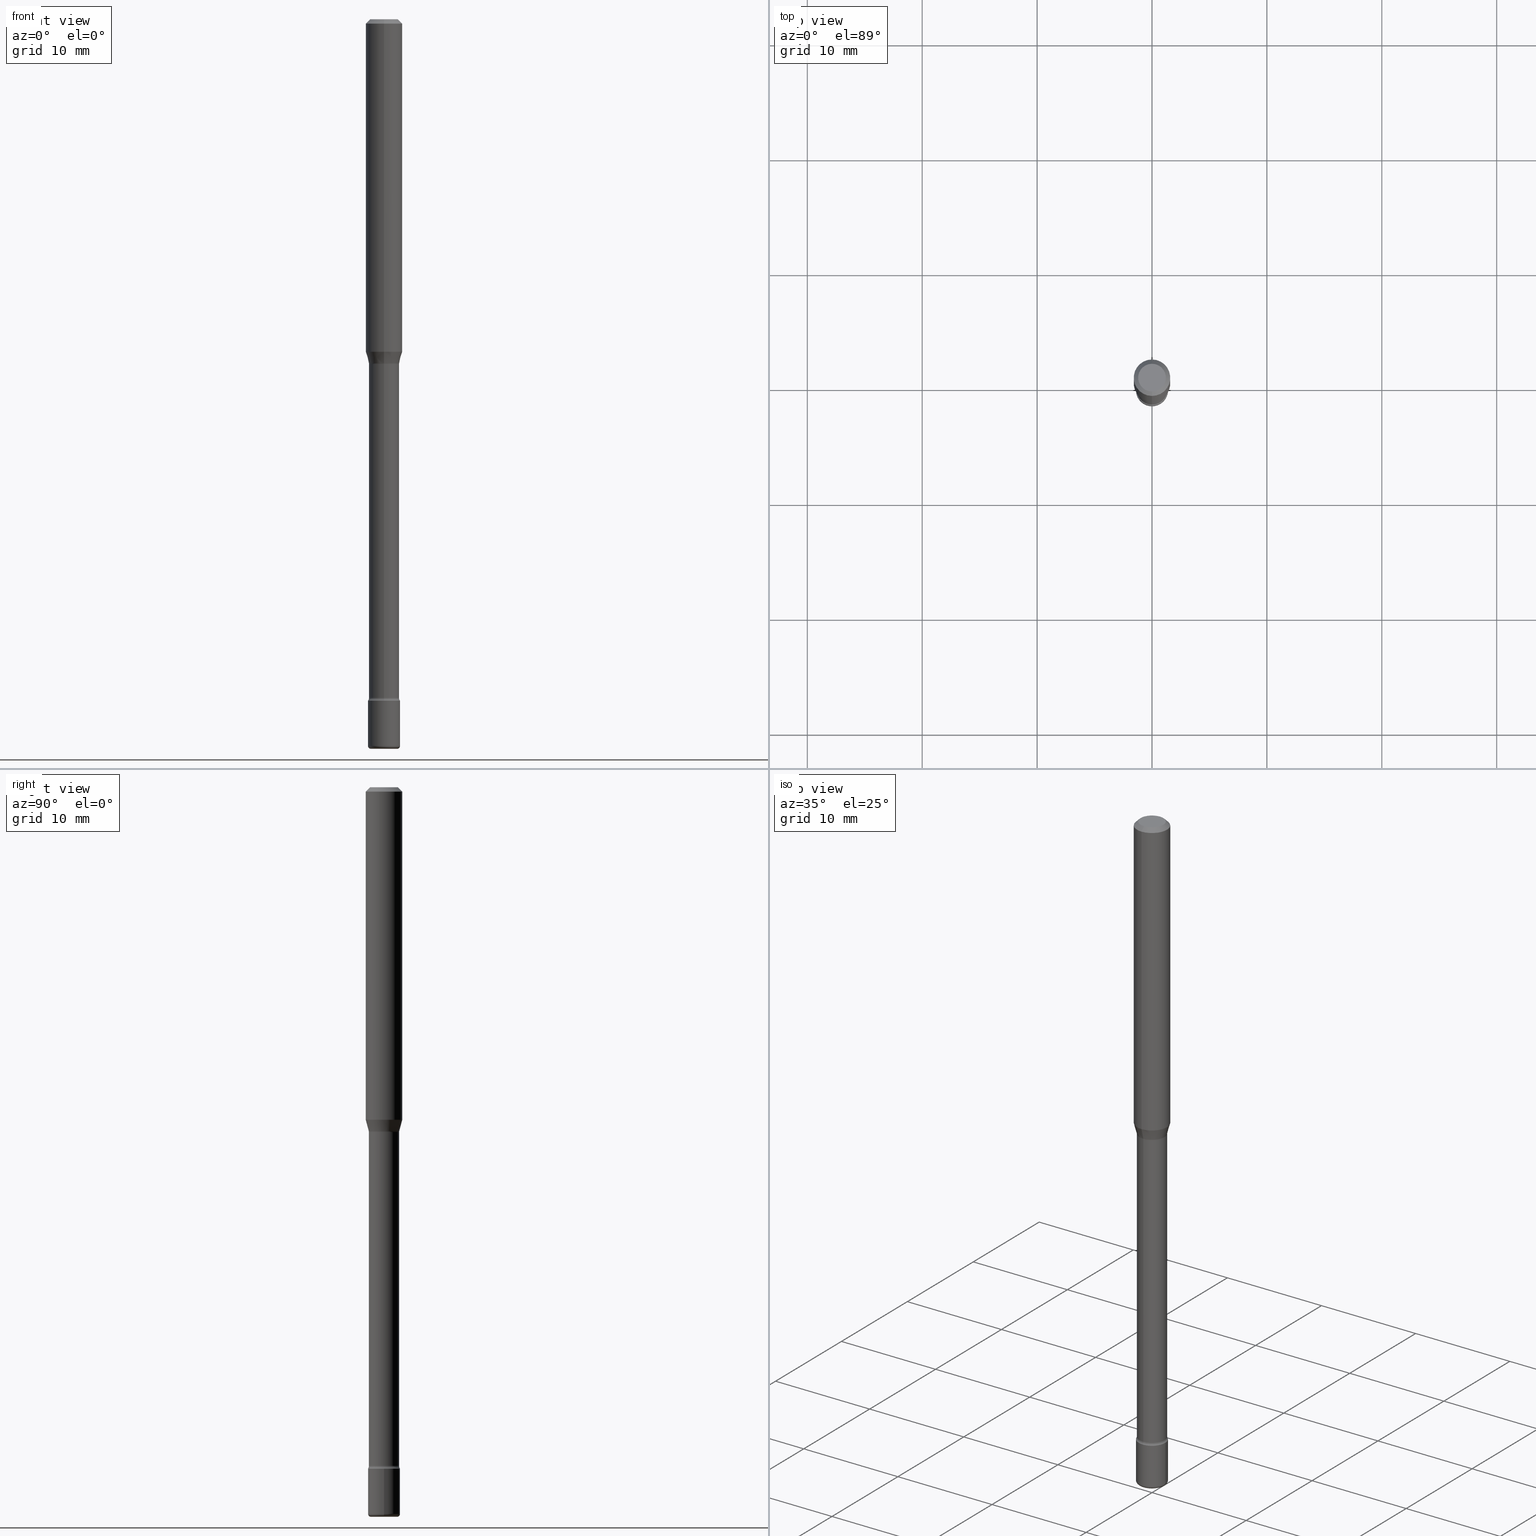
[diagram: canonical four-view strip — front | top / right | iso, engineering-drawing reading convention]
A machine part, canonical four-view strip (front | top / right | iso — engineering-drawing reading convention). The complete STEP part file that produces these views, byte-faithful:
ISO-10303-21;
HEADER;
FILE_DESCRIPTION (( 'STEP AP203' ),
    '1' );
FILE_NAME ('08871.STEP',
    '2024-03-06T20:07:18',
    ( '' ),
    ( '' ),
    'SwSTEP 2.0',
    'SolidWorks 2023',
    '' );
FILE_SCHEMA (( 'CONFIG_CONTROL_DESIGN' ));
ENDSEC;

DATA;
#1 = VECTOR ( 'NONE', #406, 39.37007874015748143 ) ;
#2 = CYLINDRICAL_SURFACE ( 'NONE', #72, 0.05169999999999998902 ) ;
#3 = LOCAL_TIME ( 15, 7, 18.00000000000000000, #459 ) ;
#4 = ORIENTED_EDGE ( 'NONE', *, *, #398, .F. ) ;
#5 = DIRECTION ( 'NONE',  ( 1.000000000000000000, -6.982962677686246989E-15, 0.000000000000000000 ) ) ;
#6 = CC_DESIGN_DATE_AND_TIME_ASSIGNMENT ( #100, #246, ( #517 ) ) ;
#7 = CARTESIAN_POINT ( 'NONE',  ( 0.000000000000000000, 0.000000000000000000, 0.000000000000000000 ) ) ;
#8 = ORIENTED_EDGE ( 'NONE', *, *, #170, .F. ) ;
#9 = DIRECTION ( 'NONE',  ( -2.445442429917292137E-29, 3.491519111159942797E-15, 1.000000000000000000 ) ) ;
#10 = ORIENTED_EDGE ( 'NONE', *, *, #354, .T. ) ;
#11 = ORIENTED_EDGE ( 'NONE', *, *, #210, .F. ) ;
#12 = TOROIDAL_SURFACE ( 'NONE', #240, 0.04499999999999999833, 0.01000000000000009041 ) ;
#13 = APPROVAL_PERSON_ORGANIZATION ( #21, #471, #426 ) ;
#14 = VERTEX_POINT ( 'NONE', #401 ) ;
#15 = ORIENTED_EDGE ( 'NONE', *, *, #400, .T. ) ;
#16 = DIRECTION ( 'NONE',  ( 1.000000000000000000, -6.982962677686260400E-15, 0.000000000000000000 ) ) ;
#17 = PERSON_AND_ORGANIZATION_ROLE ( 'design_owner' ) ;
#18 = VERTEX_POINT ( 'NONE', #88 ) ;
#19 = VERTEX_POINT ( 'NONE', #135 ) ;
#20 = ADVANCED_FACE ( 'NONE', ( #476 ), #269, .F. ) ;
#21 = PERSON_AND_ORGANIZATION ( #250, #469 ) ;
#22 = EDGE_LOOP ( 'NONE', ( #155, #542, #4, #547 ) ) ;
#23 = EDGE_CURVE ( 'NONE', #19, #295, #146, .T. ) ;
#24 = PERSON_AND_ORGANIZATION_ROLE ( 'creator' ) ;
#25 = AXIS2_PLACEMENT_3D ( 'NONE', #530, #133, #480 ) ;
#26 = LOCAL_TIME ( 15, 7, 18.00000000000000000, #200 ) ;
#27 = EDGE_LOOP ( 'NONE', ( #362, #11, #382, #103 ) ) ;
#28 = PERSON_AND_ORGANIZATION ( #250, #469 ) ;
#29 = DIRECTION ( 'NONE',  ( 6.982962677686265922E-15, 1.000000000000000000, -3.483106191921935554E-15 ) ) ;
#30 = EDGE_CURVE ( 'NONE', #18, #14, #402, .T. ) ;
#31 = DIRECTION ( 'NONE',  ( -2.445442429917292137E-29, 3.491519111159942797E-15, 1.000000000000000000 ) ) ;
#32 = AXIS2_PLACEMENT_3D ( 'NONE', #99, #483, #548 ) ;
#33 = AXIS2_PLACEMENT_3D ( 'NONE', #514, #392, #527 ) ;
#34 = CARTESIAN_POINT ( 'NONE',  ( 5.710108073856877243E-29, -8.152697124558466516E-15, -2.334999999999999964 ) ) ;
#35 = CARTESIAN_POINT ( 'NONE',  ( -1.169113584055446105E-44, 1.669184350826100908E-30, 4.780733988912460139E-16 ) ) ;
#36 = EDGE_CURVE ( 'NONE', #495, #198, #92, .T. ) ;
#37 = APPROVAL_DATE_TIME ( #76, #247 ) ;
#38 = ADVANCED_FACE ( 'NONE', ( #129 ), #2, .T. ) ;
#39 = FACE_OUTER_BOUND ( 'NONE', #192, .T. ) ;
#40 = ORIENTED_EDGE ( 'NONE', *, *, #210, .T. ) ;
#41 = LINE ( 'NONE', #221, #358 ) ;
#42 = AXIS2_PLACEMENT_3D ( 'NONE', #299, #296, #462 ) ;
#43 = CIRCLE ( 'NONE', #33, 0.01500000000000004455 ) ;
#44 = CC_DESIGN_DATE_AND_TIME_ASSIGNMENT ( #310, #312, ( #83 ) ) ;
#45 = DIRECTION ( 'NONE',  ( 1.000000000000000000, -6.982962677686246989E-15, 0.000000000000000000 ) ) ;
#46 = ORIENTED_EDGE ( 'NONE', *, *, #75, .F. ) ;
#47 = DIRECTION ( 'NONE',  ( -2.445442429917292137E-29, 3.491519111159942797E-15, 1.000000000000000000 ) ) ;
#48 = DIRECTION ( 'NONE',  ( -2.445468806185136877E-29, 3.491481338843145188E-15, 1.000000000000000000 ) ) ;
#49 = DIRECTION ( 'NONE',  ( -6.982962677686270655E-15, -1.000000000000000000, 0.000000000000000000 ) ) ;
#50 = ADVANCED_FACE ( 'NONE', ( #39 ), #357, .F. ) ;
#51 = DIMENSIONAL_EXPONENTS ( 1.000000000000000000, 0.000000000000000000, 0.000000000000000000, 0.000000000000000000, 0.000000000000000000, 0.000000000000000000, 0.000000000000000000 ) ;
#52 = DIRECTION ( 'NONE',  ( -2.445468806185136597E-29, 3.491481338843145583E-15, 1.000000000000000000 ) ) ;
#53 = AXIS2_PLACEMENT_3D ( 'NONE', #173, #525, #307 ) ;
#54 = CARTESIAN_POINT ( 'NONE',  ( 0.04499999999999999833, -9.008021854215313402E-15, -2.489999999999999769 ) ) ;
#55 = VERTEX_POINT ( 'NONE', #148 ) ;
#56 = CARTESIAN_POINT ( 'NONE',  ( 6.113672015462842613E-29, -8.728703347107864943E-15, -2.500000000000000000 ) ) ;
#57 = ORIENTED_EDGE ( 'NONE', *, *, #510, .F. ) ;
#58 = EDGE_CURVE ( 'NONE', #479, #102, #158, .T. ) ;
#59 =( NAMED_UNIT ( * ) SI_UNIT ( $, .STERADIAN. ) SOLID_ANGLE_UNIT ( ) );
#60 = VERTEX_POINT ( 'NONE', #187 ) ;
#61 = CARTESIAN_POINT ( 'NONE',  ( 2.890482472440055862E-29, -4.126842913412988651E-15, -1.181974787463810905 ) ) ;
#62 = CIRCLE ( 'NONE', #82, 0.04750000000000000749 ) ;
#63 = CARTESIAN_POINT ( 'NONE',  ( 0.000000000000000000, 0.000000000000000000, 0.000000000000000000 ) ) ;
#64 = AXIS2_PLACEMENT_3D ( 'NONE', #235, #227, #403 ) ;
#65 = EDGE_CURVE ( 'NONE', #14, #273, #125, .T. ) ;
#66 = ORIENTED_EDGE ( 'NONE', *, *, #549, .T. ) ;
#67 = EDGE_LOOP ( 'NONE', ( #290, #568, #423, #376 ) ) ;
#68 = CC_DESIGN_PERSON_AND_ORGANIZATION_ASSIGNMENT ( #422, #24, ( #540 ) ) ;
#69 = ORIENTED_EDGE ( 'NONE', *, *, #354, .F. ) ;
#70 = ORIENTED_EDGE ( 'NONE', *, *, #178, .F. ) ;
#71 = CALENDAR_DATE ( 2024, 6, 3 ) ;
#72 = AXIS2_PLACEMENT_3D ( 'NONE', #184, #84, #435 ) ;
#73 = VECTOR ( 'NONE', #496, 39.37007874015748143 ) ;
#74 = ORIENTED_EDGE ( 'NONE', *, *, #23, .F. ) ;
#75 = EDGE_CURVE ( 'NONE', #495, #504, #206, .T. ) ;
#76 = DATE_AND_TIME ( #255, #442 ) ;
#77 = CARTESIAN_POINT ( 'NONE',  ( 3.668163644875944826E-31, -5.237278666739923958E-17, -0.01500000000000002720 ) ) ;
#78 = PERSON_AND_ORGANIZATION ( #250, #469 ) ;
#79 = DIRECTION ( 'NONE',  ( -2.445442429917292137E-29, 3.491519111159942797E-15, 1.000000000000000000 ) ) ;
#80 = DIRECTION ( 'NONE',  ( 1.000000000000000000, -6.982962677686265922E-15, 4.876176775795935793E-29 ) ) ;
#81 = ADVANCED_FACE ( 'NONE', ( #199 ), #424, .T. ) ;
#82 = AXIS2_PLACEMENT_3D ( 'NONE', #123, #472, #213 ) ;
#83 = SECURITY_CLASSIFICATION ( '', '', #498 ) ;
#84 = DIRECTION ( 'NONE',  ( -2.445442429917292137E-29, 3.491519111159942797E-15, 1.000000000000000000 ) ) ;
#85 = DIRECTION ( 'NONE',  ( -2.445442429917292137E-29, 3.491519111159942797E-15, 1.000000000000000000 ) ) ;
#86 = ORIENTED_EDGE ( 'NONE', *, *, #338, .F. ) ;
#87 = DIRECTION ( 'NONE',  ( 2.445442429917292137E-29, -3.491519111159942797E-15, -1.000000000000000000 ) ) ;
#88 = CARTESIAN_POINT ( 'NONE',  ( -3.610191704363230083E-16, -0.05170000000000810753, -2.325613307291702458 ) ) ;
#89 = FACE_OUTER_BOUND ( 'NONE', #437, .T. ) ;
#90 = EDGE_LOOP ( 'NONE', ( #164, #524, #333, #341 ) ) ;
#91 = EDGE_CURVE ( 'NONE', #273, #14, #393, .T. ) ;
#92 = LINE ( 'NONE', #272, #538 ) ;
#93 = LINE ( 'NONE', #443, #167 ) ;
#94 = FACE_OUTER_BOUND ( 'NONE', #22, .T. ) ;
#95 = CARTESIAN_POINT ( 'NONE',  ( 0.05500000000000000028, -8.536671873471490084E-15, -2.334999999999999964 ) ) ;
#96 = AXIS2_PLACEMENT_3D ( 'NONE', #140, #182, #323 ) ;
#97 = CARTESIAN_POINT ( 'NONE',  ( 2.787055701031695687E-29, -3.979262862609508660E-15, -1.139693851278256176 ) ) ;
#98 = EDGE_CURVE ( 'NONE', #60, #571, #300, .T. ) ;
#99 = CARTESIAN_POINT ( 'NONE',  ( 2.890451296356476117E-29, -4.126887559339106472E-15, -1.181974787463810683 ) ) ;
#100 = DATE_AND_TIME ( #107, #26 ) ;
#101 = ORIENTED_EDGE ( 'NONE', *, *, #287, .T. ) ;
#102 = VERTEX_POINT ( 'NONE', #304 ) ;
#103 = ORIENTED_EDGE ( 'NONE', *, *, #58, .T. ) ;
#104 = EDGE_LOOP ( 'NONE', ( #189, #481 ) ) ;
#105 = DIRECTION ( 'NONE',  ( -6.982962677686265922E-15, -1.000000000000000000, 3.483106191921935554E-15 ) ) ;
#106 = AXIS2_PLACEMENT_3D ( 'NONE', #427, #356, #131 ) ;
#107 = CALENDAR_DATE ( 2024, 6, 3 ) ;
#108 = AXIS2_PLACEMENT_3D ( 'NONE', #396, #487, #411 ) ;
#109 = ORIENTED_EDGE ( 'NONE', *, *, #228, .T. ) ;
#110 = CC_DESIGN_PERSON_AND_ORGANIZATION_ASSIGNMENT ( #252, #335, ( #517 ) ) ;
#111 = DIRECTION ( 'NONE',  ( 6.982962677686265922E-15, 1.000000000000000000, -3.491519111159943192E-15 ) ) ;
#112 = ORIENTED_EDGE ( 'NONE', *, *, #373, .F. ) ;
#113 = CARTESIAN_POINT ( 'NONE',  ( 5.687153457231412235E-29, -8.119923307576861292E-15, -2.325613307291702903 ) ) ;
#114 = FACE_OUTER_BOUND ( 'NONE', #450, .T. ) ;
#115 = EDGE_CURVE ( 'NONE', #18, #285, #431, .T. ) ;
#116 = AXIS2_PLACEMENT_3D ( 'NONE', #238, #535, #413 ) ;
#117 = AXIS2_PLACEMENT_3D ( 'NONE', #306, #429, #292 ) ;
#118 = TOROIDAL_SURFACE ( 'NONE', #108, 0.06670000000000005091, 0.01500000000000004975 ) ;
#119 = DESIGN_CONTEXT ( 'detailed design', #234, 'design' ) ;
#120 = PRODUCT_DEFINITION_SHAPE ( 'NONE', 'NONE',  #517 ) ;
#121 = FACE_OUTER_BOUND ( 'NONE', #412, .T. ) ;
#122 = DIRECTION ( 'NONE',  ( -6.982962677686266711E-15, -1.000000000000000000, 5.284038672464726492E-15 ) ) ;
#123 = CARTESIAN_POINT ( 'NONE',  ( 6.622805039559550466E-46, -9.459420831309330133E-32, -2.708739301209159367E-17 ) ) ;
#124 = FACE_OUTER_BOUND ( 'NONE', #500, .T. ) ;
#125 = CIRCLE ( 'NONE', #116, 0.05500000000000000028 ) ;
#126 = EDGE_CURVE ( 'NONE', #571, #209, #308, .T. ) ;
#127 = CIRCLE ( 'NONE', #352, 0.01499999999999998557 ) ;
#128 = AXIS2_PLACEMENT_3D ( 'NONE', #63, #339, #506 ) ;
#129 = FACE_OUTER_BOUND ( 'NONE', #555, .T. ) ;
#130 = PRODUCT_RELATED_PRODUCT_CATEGORY ( 'detail', '', ( #350 ) ) ;
#131 = DIRECTION ( 'NONE',  ( -1.000000000000000000, 7.105427357600958471E-15, 0.000000000000000000 ) ) ;
#132 = MANIFOLD_SOLID_BREP ( 'Body-Move/Copy2[2]', #375 ) ;
#133 = DIRECTION ( 'NONE',  ( -1.000000000000000000, 6.982962677686265922E-15, -4.883557194083112340E-29 ) ) ;
#134 = DIRECTION ( 'NONE',  ( 7.105427357601006592E-15, 1.000000000000000000, 0.000000000000000000 ) ) ;
#135 = CARTESIAN_POINT ( 'NONE',  ( -3.773273898774340269E-16, -0.04750000000000000749, 1.387597647680057241E-16 ) ) ;
#136 = DIRECTION ( 'NONE',  ( -1.000000000000000000, 6.982962677686265922E-15, -4.883557194083112340E-29 ) ) ;
#137 = AXIS2_PLACEMENT_3D ( 'NONE', #485, #319, #5 ) ;
#138 = ADVANCED_FACE ( 'NONE', ( #94 ), #275, .T. ) ;
#139 = CC_DESIGN_SECURITY_CLASSIFICATION ( #83, ( #540 ) ) ;
#140 = CARTESIAN_POINT ( 'NONE',  ( 2.890482472440055862E-29, -4.126842913412988651E-15, -1.181974787463810905 ) ) ;
#141 = CARTESIAN_POINT ( 'NONE',  ( -4.657636106016450234E-16, -0.06670000000000413098, -1.181974787463810683 ) ) ;
#142 = CARTESIAN_POINT ( 'NONE',  ( 6.089217327400989947E-29, -8.693788533719431716E-15, -2.489999999999999769 ) ) ;
#143 = EDGE_CURVE ( 'NONE', #60, #379, #179, .T. ) ;
#144 = DIRECTION ( 'NONE',  ( 1.000000000000000000, -6.982962677686262766E-15, 0.000000000000000000 ) ) ;
#145 = ORIENTED_EDGE ( 'NONE', *, *, #176, .F. ) ;
#146 = CIRCLE ( 'NONE', #214, 0.04750000000000000749 ) ;
#147 = CIRCLE ( 'NONE', #207, 0.05169999999999999596 ) ;
#148 = CARTESIAN_POINT ( 'NONE',  ( -0.04499999999999999833, -8.355974572533597921E-15, -2.500000000000000000 ) ) ;
#149 = CARTESIAN_POINT ( 'NONE',  ( 4.440892098500903249E-16, 0.06249999999999600320, -1.139693851278256398 ) ) ;
#150 = ORIENTED_EDGE ( 'NONE', *, *, #143, .T. ) ;
#151 = EDGE_LOOP ( 'NONE', ( #239, #286 ) ) ;
#152 = APPLICATION_PROTOCOL_DEFINITION ( 'international standard', 'config_control_design', 1994, #439 ) ;
#153 = ORIENTED_EDGE ( 'NONE', *, *, #373, .T. ) ;
#154 = DIRECTION ( 'NONE',  ( -2.445442429917292137E-29, 3.491519111159942797E-15, 1.000000000000000000 ) ) ;
#155 = ORIENTED_EDGE ( 'NONE', *, *, #170, .T. ) ;
#156 = ORIENTED_EDGE ( 'NONE', *, *, #91, .F. ) ;
#157 = CC_DESIGN_PERSON_AND_ORGANIZATION_ASSIGNMENT ( #196, #17, ( #350 ) ) ;
#158 = CIRCLE ( 'NONE', #32, 0.05169999999999999596 ) ;
#159 = AXIS2_PLACEMENT_3D ( 'NONE', #562, #79, #256 ) ;
#160 = DATE_AND_TIME ( #493, #343 ) ;
#161 = CIRCLE ( 'NONE', #359, 0.01499999999999998557 ) ;
#162 = ORIENTED_EDGE ( 'NONE', *, *, #456, .T. ) ;
#163 = DIRECTION ( 'NONE',  ( -2.445442429917292137E-29, 3.491519111159943192E-15, 1.000000000000000000 ) ) ;
#164 = ORIENTED_EDGE ( 'NONE', *, *, #98, .T. ) ;
#165 = DIRECTION ( 'NONE',  ( 6.982962677686265922E-15, 1.000000000000000000, -3.483106191921935554E-15 ) ) ;
#166 = DIRECTION ( 'NONE',  ( 1.000000000000000000, -6.982962677686250933E-15, 4.883557194083107856E-29 ) ) ;
#167 = VECTOR ( 'NONE', #274, 39.37007874015748143 ) ;
#168 = DIRECTION ( 'NONE',  ( -6.982962677686265922E-15, -1.000000000000000000, 3.491519111159943586E-15 ) ) ;
#169 = DIRECTION ( 'NONE',  ( -2.445468806185136597E-29, 3.491481338843145583E-15, 1.000000000000000000 ) ) ;
#170 = EDGE_CURVE ( 'NONE', #504, #495, #394, .T. ) ;
#171 = DIRECTION ( 'NONE',  ( -1.000000000000000000, 6.982962677686265922E-15, -4.876176775795935793E-29 ) ) ;
#172 = CYLINDRICAL_SURFACE ( 'NONE', #328, 0.06250000000000000000 ) ;
#173 = CARTESIAN_POINT ( 'NONE',  ( 5.710169662442294357E-29, -8.152608926198745099E-15, -2.334999999999999964 ) ) ;
#174 = AXIS2_PLACEMENT_3D ( 'NONE', #7, #52, #569 ) ;
#175 = DIRECTION ( 'NONE',  ( -2.445468806185136597E-29, 3.491481338843145583E-15, 1.000000000000000000 ) ) ;
#176 = EDGE_CURVE ( 'NONE', #209, #379, #404, .T. ) ;
#177 = LINE ( 'NONE', #384, #302 ) ;
#178 = EDGE_CURVE ( 'NONE', #236, #294, #313, .T. ) ;
#179 = LINE ( 'NONE', #365, #73 ) ;
#180 = CARTESIAN_POINT ( 'NONE',  ( 6.622805039559550466E-46, -9.459420831309330133E-32, -2.708739301209159367E-17 ) ) ;
#181 = ORIENTED_EDGE ( 'NONE', *, *, #98, .F. ) ;
#182 = DIRECTION ( 'NONE',  ( -2.445442429917292137E-29, 3.491519111159942797E-15, 1.000000000000000000 ) ) ;
#183 = CIRCLE ( 'NONE', #106, 0.01000000000000009041 ) ;
#184 = CARTESIAN_POINT ( 'NONE',  ( -1.169113584055446105E-44, 1.669184350826100908E-30, 4.780733988912460139E-16 ) ) ;
#185 = CARTESIAN_POINT ( 'NONE',  ( 5.710169662442294357E-29, -8.152608926198745099E-15, -2.334999999999999964 ) ) ;
#186 = ADVANCED_FACE ( 'NONE', ( #114 ), #415, .T. ) ;
#187 = CARTESIAN_POINT ( 'NONE',  ( -4.364351673553638128E-16, -0.06250000000000399680, -1.139693851278255954 ) ) ;
#188 = LINE ( 'NONE', #282, #477 ) ;
#189 = ORIENTED_EDGE ( 'NONE', *, *, #317, .T. ) ;
#190 = DIRECTION ( 'NONE',  ( -2.445468806185136597E-29, 3.491481338843145583E-15, 1.000000000000000000 ) ) ;
#191 = DIRECTION ( 'NONE',  ( -6.982962677686265922E-15, -1.000000000000000000, 4.370956789862821150E-15 ) ) ;
#192 = EDGE_LOOP ( 'NONE', ( #70, #532, #109, #244 ) ) ;
#193 = ORIENTED_EDGE ( 'NONE', *, *, #338, .T. ) ;
#194 = ORIENTED_EDGE ( 'NONE', *, *, #242, .T. ) ;
#195 = CIRCLE ( 'NONE', #551, 0.05500000000000000028 ) ;
#196 = PERSON_AND_ORGANIZATION ( #250, #469 ) ;
#197 = ORIENTED_EDGE ( 'NONE', *, *, #30, .F. ) ;
#198 = VERTEX_POINT ( 'NONE', #349 ) ;
#199 = FACE_OUTER_BOUND ( 'NONE', #298, .T. ) ;
#200 = COORDINATED_UNIVERSAL_TIME_OFFSET ( 5, 0, .BEHIND. ) ;
#201 = ADVANCED_FACE ( 'NONE', ( #512 ), #231, .T. ) ;
#202 = ORIENTED_EDGE ( 'NONE', *, *, #549, .F. ) ;
#203 = DIRECTION ( 'NONE',  ( -6.982962677686265133E-15, -1.000000000000000000, 3.491519111159943192E-15 ) ) ;
#204 = APPROVAL_STATUS ( 'not_yet_approved' ) ;
#205 = ORIENTED_EDGE ( 'NONE', *, *, #400, .F. ) ;
#206 = CIRCLE ( 'NONE', #521, 0.05500000000000001416 ) ;
#207 = AXIS2_PLACEMENT_3D ( 'NONE', #348, #467, #566 ) ;
#208 = LENGTH_MEASURE_WITH_UNIT ( LENGTH_MEASURE( 0.02539999999999999897 ), #502 );
#209 = VERTEX_POINT ( 'NONE', #276 ) ;
#210 = EDGE_CURVE ( 'NONE', #294, #236, #251, .T. ) ;
#211 = PERSON_AND_ORGANIZATION ( #250, #469 ) ;
#212 = CALENDAR_DATE ( 2024, 6, 3 ) ;
#213 = DIRECTION ( 'NONE',  ( -6.982962677686265133E-15, -1.000000000000000000, 3.491519111159942797E-15 ) ) ;
#214 = AXIS2_PLACEMENT_3D ( 'NONE', #180, #220, #366 ) ;
#215 = VECTOR ( 'NONE', #557, 39.37007874015748143 ) ;
#216 = PLANE ( 'NONE',  #257 ) ;
#217 = FACE_OUTER_BOUND ( 'NONE', #489, .T. ) ;
#218 = SHAPE_DEFINITION_REPRESENTATION ( #120, #473 ) ;
#219 = DIRECTION ( 'NONE',  ( -2.445468806185136877E-29, 3.491481338843145188E-15, 1.000000000000000000 ) ) ;
#220 = DIRECTION ( 'NONE',  ( -2.445442429917292137E-29, 3.491519111159942797E-15, 1.000000000000000000 ) ) ;
#221 = CARTESIAN_POINT ( 'NONE',  ( 0.05500000000000001416, -3.840629472727447381E-16, 2.681897226687765177E-30 ) ) ;
#222 = VECTOR ( 'NONE', #262, 39.37007874015748143 ) ;
#223 = CIRCLE ( 'NONE', #523, 0.06250000000000000000 ) ;
#224 = DIRECTION ( 'NONE',  ( -2.445442429917291576E-29, 3.491519111159943192E-15, 1.000000000000000000 ) ) ;
#225 = DIRECTION ( 'NONE',  ( 1.000000000000000000, -7.105427357601001070E-15, 4.926315971119550959E-29 ) ) ;
#226 = DIRECTION ( 'NONE',  ( 1.839019923739600315E-15, 0.2588190451025249583, 0.9659258262890670910 ) ) ;
#227 = DIRECTION ( 'NONE',  ( -2.445442429917292137E-29, 3.491519111159942797E-15, 1.000000000000000000 ) ) ;
#228 = EDGE_CURVE ( 'NONE', #102, #479, #147, .T. ) ;
#229 = AXIS2_PLACEMENT_3D ( 'NONE', #254, #31, #303 ) ;
#230 = APPROVAL_PERSON_ORGANIZATION ( #78, #247, #261 ) ;
#231 = CYLINDRICAL_SURFACE ( 'NONE', #267, 0.06250000000000000000 ) ;
#232 = DIRECTION ( 'NONE',  ( -2.445442429917292137E-29, 3.491519111159942797E-15, 1.000000000000000000 ) ) ;
#233 = ORIENTED_EDGE ( 'NONE', *, *, #258, .F. ) ;
#234 = APPLICATION_CONTEXT ( 'configuration controlled 3d designs of mechanical parts and assemblies' ) ;
#235 = CARTESIAN_POINT ( 'NONE',  ( 2.880957390238010953E-29, -4.113332484704493169E-15, -1.178092501787272983 ) ) ;
#236 = VERTEX_POINT ( 'NONE', #465 ) ;
#237 = CARTESIAN_POINT ( 'NONE',  ( 2.880957390238010953E-29, -4.113332484704493169E-15, -1.178092501787272983 ) ) ;
#238 = CARTESIAN_POINT ( 'NONE',  ( 5.710108073856877243E-29, -8.152697124558466516E-15, -2.334999999999999964 ) ) ;
#239 = ORIENTED_EDGE ( 'NONE', *, *, #398, .T. ) ;
#240 = AXIS2_PLACEMENT_3D ( 'NONE', #260, #175, #438 ) ;
#241 = CONICAL_SURFACE ( 'NONE', #259, 0.05221111260566397433, 0.2617993877991502960 ) ;
#242 = EDGE_CURVE ( 'NONE', #55, #495, #183, .T. ) ;
#243 =( NAMED_UNIT ( * ) PLANE_ANGLE_UNIT ( ) SI_UNIT ( $, .RADIAN. ) );
#244 = ORIENTED_EDGE ( 'NONE', *, *, #410, .F. ) ;
#245 = ORIENTED_EDGE ( 'NONE', *, *, #456, .F. ) ;
#246 = DATE_TIME_ROLE ( 'creation_date' ) ;
#247 = APPROVAL ( #470, 'UNSPECIFIED' ) ;
#248 = ORIENTED_EDGE ( 'NONE', *, *, #126, .F. ) ;
#249 = EDGE_CURVE ( 'NONE', #198, #458, #563, .T. ) ;
#250 = PERSON ( 'UNSPECIFIED', 'UNSPECIFIED', 'UNSPECIFIED', ('UNSPECIFIED'), ('UNSPECIFIED'), ('UNSPECIFIED') ) ;
#251 = CIRCLE ( 'NONE', #117, 0.05221111260566397433 ) ;
#252 = PERSON_AND_ORGANIZATION ( #250, #469 ) ;
#253 = PERSON_AND_ORGANIZATION_ROLE ( 'classification_officer' ) ;
#254 = CARTESIAN_POINT ( 'NONE',  ( 5.687153457231412235E-29, -8.119923307576861292E-15, -2.325613307291702903 ) ) ;
#255 = CALENDAR_DATE ( 2024, 6, 3 ) ;
#256 = DIRECTION ( 'NONE',  ( -6.982962677686266711E-15, -1.000000000000000000, 3.491519111159944375E-15 ) ) ;
#257 = AXIS2_PLACEMENT_3D ( 'NONE', #390, #559, #171 ) ;
#258 = EDGE_CURVE ( 'NONE', #295, #209, #432, .T. ) ;
#259 = AXIS2_PLACEMENT_3D ( 'NONE', #447, #232, #407 ) ;
#260 = CARTESIAN_POINT ( 'NONE',  ( 6.089217327400989947E-29, -8.693788533719431716E-15, -2.489999999999999769 ) ) ;
#261 = APPROVAL_ROLE ( '' ) ;
#262 = DIRECTION ( 'NONE',  ( -1.807323732225330139E-15, -0.2588190451025181860, 0.9659258262890689783 ) ) ;
#263 = EDGE_LOOP ( 'NONE', ( #409, #156 ) ) ;
#264 = DIRECTION ( 'NONE',  ( -6.982962677686265922E-15, -1.000000000000000000, 3.483106191921935554E-15 ) ) ;
#265 = CARTESIAN_POINT ( 'NONE',  ( 3.709822678791001255E-16, 0.05221111260565985956, -1.178092501787273205 ) ) ;
#266 = AXIS2_PLACEMENT_3D ( 'NONE', #565, #224, #570 ) ;
#267 = AXIS2_PLACEMENT_3D ( 'NONE', #372, #491, #519 ) ;
#268 = AXIS2_PLACEMENT_3D ( 'NONE', #509, #414, #111 ) ;
#269 = PLANE ( 'NONE',  #266 ) ;
#270 = ORIENTED_EDGE ( 'NONE', *, *, #449, .F. ) ;
#271 = CARTESIAN_POINT ( 'NONE',  ( 0.04499999999999999833, -9.042936667603745051E-15, -2.500000000000000000 ) ) ;
#272 = CARTESIAN_POINT ( 'NONE',  ( -0.05500000000000001416, 3.907985046680552028E-16, -2.705414299640198712E-30 ) ) ;
#273 = VERTEX_POINT ( 'NONE', #360 ) ;
#274 = DIRECTION ( 'NONE',  ( -2.445442429917292137E-29, 3.491519111159943192E-15, 1.000000000000000000 ) ) ;
#275 = CYLINDRICAL_SURFACE ( 'NONE', #174, 0.05500000000000001416 ) ;
#276 = CARTESIAN_POINT ( 'NONE',  ( 4.440892098500906207E-16, 0.06249999999999993755, -0.01500000000000024578 ) ) ;
#277 = FACE_OUTER_BOUND ( 'NONE', #417, .T. ) ;
#278 = AXIS2_PLACEMENT_3D ( 'NONE', #353, #85, #264 ) ;
#279 = ORIENTED_EDGE ( 'NONE', *, *, #91, .T. ) ;
#280 = APPROVAL_PERSON_ORGANIZATION ( #28, #324, #297 ) ;
#281 = CARTESIAN_POINT ( 'NONE',  ( 6.089217327400989947E-29, -8.693788533719431716E-15, -2.489999999999999769 ) ) ;
#282 = CARTESIAN_POINT ( 'NONE',  ( -4.287811248607203282E-16, -0.06250000000000005551, -0.01499999999999981036 ) ) ;
#283 = ORIENTED_EDGE ( 'NONE', *, *, #327, .T. ) ;
#284 = ADVANCED_FACE ( 'NONE', ( #217 ), #172, .T. ) ;
#285 = VERTEX_POINT ( 'NONE', #474 ) ;
#286 = ORIENTED_EDGE ( 'NONE', *, *, #249, .T. ) ;
#287 = EDGE_CURVE ( 'NONE', #294, #60, #391, .T. ) ;
#288 = ORIENTED_EDGE ( 'NONE', *, *, #115, .T. ) ;
#289 = AXIS2_PLACEMENT_3D ( 'NONE', #61, #492, #203 ) ;
#290 = ORIENTED_EDGE ( 'NONE', *, *, #36, .F. ) ;
#291 = AXIS2_PLACEMENT_3D ( 'NONE', #56, #528, #45 ) ;
#292 = DIRECTION ( 'NONE',  ( -6.982962677686266711E-15, -1.000000000000000000, 2.616155696869698836E-15 ) ) ;
#293 = APPLICATION_PROTOCOL_DEFINITION ( 'international standard', 'config_control_design', 1994, #234 ) ;
#294 = VERTEX_POINT ( 'NONE', #520 ) ;
#295 = VERTEX_POINT ( 'NONE', #361 ) ;
#296 = DIRECTION ( 'NONE',  ( -2.445442429917292137E-29, 3.491519111159942797E-15, 1.000000000000000000 ) ) ;
#297 = APPROVAL_ROLE ( '' ) ;
#298 = EDGE_LOOP ( 'NONE', ( #460, #194, #8, #112 ) ) ;
#299 = CARTESIAN_POINT ( 'NONE',  ( 2.787055701031695687E-29, -3.979262862609508660E-15, -1.139693851278256176 ) ) ;
#300 = CIRCLE ( 'NONE', #42, 0.06250000000000000000 ) ;
#301 = AXIS2_PLACEMENT_3D ( 'NONE', #516, #395, #80 ) ;
#302 = VECTOR ( 'NONE', #163, 39.37007874015748143 ) ;
#303 = DIRECTION ( 'NONE',  ( -6.982962677686266711E-15, -1.000000000000000000, 5.284038672464726492E-15 ) ) ;
#304 = CARTESIAN_POINT ( 'NONE',  ( 3.673505943880288119E-16, 0.05169999999999587426, -1.181974787463810905 ) ) ;
#305 = ADVANCED_FACE ( 'NONE', ( #124 ), #558, .T. ) ;
#306 = CARTESIAN_POINT ( 'NONE',  ( 2.880957390238010953E-29, -4.113332484704493169E-15, -1.178092501787272983 ) ) ;
#307 = DIRECTION ( 'NONE',  ( 1.000000000000000000, -6.982962677686262766E-15, 0.000000000000000000 ) ) ;
#308 = LINE ( 'NONE', #446, #1 ) ;
#309 = ADVANCED_FACE ( 'NONE', ( #430 ), #436, .T. ) ;
#310 = DATE_AND_TIME ( #212, #405 ) ;
#311 = FACE_OUTER_BOUND ( 'NONE', #27, .T. ) ;
#312 = DATE_TIME_ROLE ( 'classification_date' ) ;
#313 = CIRCLE ( 'NONE', #388, 0.05221111260566397433 ) ;
#314 = FACE_OUTER_BOUND ( 'NONE', #347, .T. ) ;
#315 = ADVANCED_FACE ( 'NONE', ( #314 ), #12, .T. ) ;
#316 = CARTESIAN_POINT ( 'NONE',  ( 4.364351673553919652E-16, 0.06249999999999995143, -0.01500000000000024578 ) ) ;
#317 = EDGE_CURVE ( 'NONE', #295, #19, #62, .T. ) ;
#318 = FACE_OUTER_BOUND ( 'NONE', #334, .T. ) ;
#319 = DIRECTION ( 'NONE',  ( -2.445468806185136597E-29, 3.491481338843145583E-15, 1.000000000000000000 ) ) ;
#320 = CIRCLE ( 'NONE', #137, 0.04499999999999999833 ) ;
#321 = VECTOR ( 'NONE', #226, 39.37007874015748143 ) ;
#322 = ORIENTED_EDGE ( 'NONE', *, *, #178, .T. ) ;
#323 = DIRECTION ( 'NONE',  ( -6.982962677686265133E-15, -1.000000000000000000, 3.491519111159943192E-15 ) ) ;
#324 = APPROVAL ( #377, 'UNSPECIFIED' ) ;
#325 = LINE ( 'NONE', #265, #321 ) ;
#326 = CARTESIAN_POINT ( 'NONE',  ( 0.05500000000000004191, -9.077851480992175123E-15, -2.489999999999999769 ) ) ;
#327 = EDGE_CURVE ( 'NONE', #379, #209, #522, .T. ) ;
#328 = AXIS2_PLACEMENT_3D ( 'NONE', #35, #387, #168 ) ;
#329 = CC_DESIGN_APPROVAL ( #247, ( #83 ) ) ;
#330 = MANIFOLD_SOLID_BREP ( 'Body-Move/Copy2[1]', #340 ) ;
#331 = MECHANICAL_CONTEXT ( 'NONE', #439, 'mechanical' ) ;
#332 = EDGE_CURVE ( 'NONE', #504, #458, #41, .T. ) ;
#333 = ORIENTED_EDGE ( 'NONE', *, *, #327, .F. ) ;
#334 = EDGE_LOOP ( 'NONE', ( #86, #494, #416, #380 ) ) ;
#335 = PERSON_AND_ORGANIZATION_ROLE ( 'creator' ) ;
#336 = ORIENTED_EDGE ( 'NONE', *, *, #176, .T. ) ;
#337 = DIRECTION ( 'NONE',  ( -2.445442429917292137E-29, 3.491519111159942797E-15, 1.000000000000000000 ) ) ;
#338 = EDGE_CURVE ( 'NONE', #285, #273, #43, .T. ) ;
#339 = DIRECTION ( 'NONE',  ( 0.000000000000000000, 0.000000000000000000, 1.000000000000000000 ) ) ;
#340 = CLOSED_SHELL ( 'NONE', ( #138, #81, #309, #364, #315, #463 ) ) ;
#341 = ORIENTED_EDGE ( 'NONE', *, *, #143, .F. ) ;
#342 = CIRCLE ( 'NONE', #425, 0.01000000000000009041 ) ;
#343 = LOCAL_TIME ( 15, 7, 18.00000000000000000, #381 ) ;
#344 = ADVANCED_FACE ( 'NONE', ( #121 ), #466, .T. ) ;
#345 = APPROVAL_DATE_TIME ( #160, #471 ) ;
#346 = ORIENTED_EDGE ( 'NONE', *, *, #317, .F. ) ;
#347 = EDGE_LOOP ( 'NONE', ( #507, #499, #153, #46 ) ) ;
#348 = CARTESIAN_POINT ( 'NONE',  ( 2.890451296356476117E-29, -4.126887559339106472E-15, -1.181974787463810683 ) ) ;
#349 = CARTESIAN_POINT ( 'NONE',  ( -0.05500000000000000028, -8.032400225291033747E-15, -2.334999999999999964 ) ) ;
#350 = PRODUCT ( '08871', '08871', '', ( #331 ) ) ;
#351 = DIRECTION ( 'NONE',  ( -6.982962677686266711E-15, -1.000000000000000000, 4.966996352116842287E-15 ) ) ;
#352 = AXIS2_PLACEMENT_3D ( 'NONE', #141, #136, #49 ) ;
#353 = CARTESIAN_POINT ( 'NONE',  ( 3.668163644875944826E-31, -5.237278666739923958E-17, -0.01500000000000002720 ) ) ;
#354 = EDGE_CURVE ( 'NONE', #285, #18, #441, .T. ) ;
#355 = FACE_OUTER_BOUND ( 'NONE', #385, .T. ) ;
#356 = DIRECTION ( 'NONE',  ( 7.105427357601001859E-15, 1.000000000000000000, -3.491481338843145583E-15 ) ) ;
#357 = TOROIDAL_SURFACE ( 'NONE', #289, 0.06669999999999999540, 0.01499999999999998904 ) ;
#358 = VECTOR ( 'NONE', #219, 39.37007874015748143 ) ;
#359 = AXIS2_PLACEMENT_3D ( 'NONE', #374, #225, #134 ) ;
#360 = CARTESIAN_POINT ( 'NONE',  ( 3.907985046681124445E-16, 0.05499999999999189565, -2.335000000000000409 ) ) ;
#361 = CARTESIAN_POINT ( 'NONE',  ( 3.840629472727447874E-16, 0.04750000000000000749, -1.929345507921888929E-16 ) ) ;
#362 = ORIENTED_EDGE ( 'NONE', *, *, #526, .F. ) ;
#363 = DIRECTION ( 'NONE',  ( -6.982962677686266711E-15, -1.000000000000000000, 3.491481338843145583E-15 ) ) ;
#364 = ADVANCED_FACE ( 'NONE', ( #355 ), #216, .T. ) ;
#365 = CARTESIAN_POINT ( 'NONE',  ( -4.364351673553916201E-16, -0.06250000000000000000, 6.962933433387425620E-16 ) ) ;
#366 = DIRECTION ( 'NONE',  ( -6.982962677686265133E-15, -1.000000000000000000, 3.491519111159942797E-15 ) ) ;
#367 = DIRECTION ( 'NONE',  ( -2.445468806185136597E-29, 3.491481338843145583E-15, 1.000000000000000000 ) ) ;
#368 = TOROIDAL_SURFACE ( 'NONE', #96, 0.06669999999999999540, 0.01499999999999998904 ) ;
#369 = ADVANCED_FACE ( 'NONE', ( #311 ), #368, .F. ) ;
#370 = FACE_OUTER_BOUND ( 'NONE', #67, .T. ) ;
#371 = CARTESIAN_POINT ( 'NONE',  ( -0.05500000000000004191, -8.302990029051375478E-15, -2.489999999999999769 ) ) ;
#372 = CARTESIAN_POINT ( 'NONE',  ( -1.169113584055446105E-44, 1.669184350826100908E-30, 4.780733988912460139E-16 ) ) ;
#373 = EDGE_CURVE ( 'NONE', #541, #504, #342, .T. ) ;
#374 = CARTESIAN_POINT ( 'NONE',  ( 4.739320047520156833E-16, 0.06669999999999587370, -1.181974787463811127 ) ) ;
#375 = CLOSED_SHELL ( 'NONE', ( #50, #344, #501, #305, #201, #484, #421, #284, #186, #560, #20, #543, #38, #369 ) ) ;
#376 = ORIENTED_EDGE ( 'NONE', *, *, #249, .F. ) ;
#377 = APPROVAL_STATUS ( 'not_yet_approved' ) ;
#378 = PLANE ( 'NONE',  #268 ) ;
#379 = VERTEX_POINT ( 'NONE', #475 ) ;
#380 = ORIENTED_EDGE ( 'NONE', *, *, #65, .T. ) ;
#381 = COORDINATED_UNIVERSAL_TIME_OFFSET ( 5, 0, .BEHIND. ) ;
#382 = ORIENTED_EDGE ( 'NONE', *, *, #410, .T. ) ;
#383 = DIRECTION ( 'NONE',  ( -6.982962677686266711E-15, -1.000000000000000000, 2.616155696869698836E-15 ) ) ;
#384 = CARTESIAN_POINT ( 'NONE',  ( 3.673505943879716688E-16, 0.05169999999999998902, 2.975618608442770603E-16 ) ) ;
#385 = EDGE_LOOP ( 'NONE', ( #270, #408 ) ) ;
#386 = COORDINATED_UNIVERSAL_TIME_OFFSET ( 5, 0, .BEHIND. ) ;
#387 = DIRECTION ( 'NONE',  ( -2.445442429917292137E-29, 3.491519111159942797E-15, 1.000000000000000000 ) ) ;
#388 = AXIS2_PLACEMENT_3D ( 'NONE', #237, #337, #383 ) ;
#389 = AXIS2_PLACEMENT_3D ( 'NONE', #572, #567, #451 ) ;
#390 = CARTESIAN_POINT ( 'NONE',  ( 3.142333204959430697E-16, 0.04499999999999127615, -2.500000000000000000 ) ) ;
#391 = LINE ( 'NONE', #561, #222 ) ;
#392 = DIRECTION ( 'NONE',  ( 1.000000000000000000, -7.105427357601001070E-15, 4.926315971119550959E-29 ) ) ;
#393 = CIRCLE ( 'NONE', #461, 0.05500000000000000028 ) ;
#394 = CIRCLE ( 'NONE', #448, 0.05500000000000001416 ) ;
#395 = DIRECTION ( 'NONE',  ( -2.438088387897960049E-29, 3.491481338843145188E-15, 1.000000000000000000 ) ) ;
#396 = CARTESIAN_POINT ( 'NONE',  ( 5.687214798230907854E-29, -8.119835463774270932E-15, -2.325613307291702903 ) ) ;
#397 = UNCERTAINTY_MEASURE_WITH_UNIT (LENGTH_MEASURE( 1.000000000000000082E-05 ), #420, 'distance_accuracy_value', 'NONE');
#398 = EDGE_CURVE ( 'NONE', #458, #198, #195, .T. ) ;
#399 = DIRECTION ( 'NONE',  ( -6.982962677686265133E-15, -1.000000000000000000, 3.491519111159942403E-15 ) ) ;
#400 = EDGE_CURVE ( 'NONE', #236, #571, #325, .T. ) ;
#401 = CARTESIAN_POINT ( 'NONE',  ( -3.840629472726877429E-16, -0.05500000000000818817, -2.334999999999999964 ) ) ;
#402 = CIRCLE ( 'NONE', #25, 0.01500000000000004455 ) ;
#403 = DIRECTION ( 'NONE',  ( -6.982962677686266711E-15, -1.000000000000000000, 2.616155696869698836E-15 ) ) ;
#404 = CIRCLE ( 'NONE', #488, 0.06250000000000000000 ) ;
#405 = LOCAL_TIME ( 15, 7, 18.00000000000000000, #386 ) ;
#406 = DIRECTION ( 'NONE',  ( -2.445442429917292137E-29, 3.491519111159943192E-15, 1.000000000000000000 ) ) ;
#407 = DIRECTION ( 'NONE',  ( -6.982962677686266711E-15, -1.000000000000000000, 2.616155696869698836E-15 ) ) ;
#408 = ORIENTED_EDGE ( 'NONE', *, *, #440, .F. ) ;
#409 = ORIENTED_EDGE ( 'NONE', *, *, #65, .F. ) ;
#410 = EDGE_CURVE ( 'NONE', #294, #479, #127, .T. ) ;
#411 = DIRECTION ( 'NONE',  ( -6.982962677686265133E-15, -1.000000000000000000, 3.491519111159942403E-15 ) ) ;
#412 = EDGE_LOOP ( 'NONE', ( #288, #66, #511, #419 ) ) ;
#413 = DIRECTION ( 'NONE',  ( -6.982962677686266711E-15, -1.000000000000000000, 4.966996352116842287E-15 ) ) ;
#414 = DIRECTION ( 'NONE',  ( 2.445442429917291576E-29, -3.491519111159943192E-15, -1.000000000000000000 ) ) ;
#415 = CONICAL_SURFACE ( 'NONE', #468, 0.06250000000000000000, 0.7853981633974480570 ) ;
#416 = ORIENTED_EDGE ( 'NONE', *, *, #30, .T. ) ;
#417 = EDGE_LOOP ( 'NONE', ( #40, #15, #181, #544 ) ) ;
#418 = PERSON_AND_ORGANIZATION ( #250, #469 ) ;
#419 = ORIENTED_EDGE ( 'NONE', *, *, #433, .F. ) ;
#420 =( CONVERSION_BASED_UNIT ( 'INCH', #208 ) LENGTH_UNIT ( ) NAMED_UNIT ( #51 ) );
#421 = ADVANCED_FACE ( 'NONE', ( #482 ), #453, .T. ) ;
#422 = PERSON_AND_ORGANIZATION ( #250, #469 ) ;
#423 = ORIENTED_EDGE ( 'NONE', *, *, #332, .T. ) ;
#424 = TOROIDAL_SURFACE ( 'NONE', #486, 0.04499999999999999833, 0.01000000000000009041 ) ;
#425 = AXIS2_PLACEMENT_3D ( 'NONE', #54, #363, #536 ) ;
#426 = APPROVAL_ROLE ( '' ) ;
#427 = CARTESIAN_POINT ( 'NONE',  ( -0.04499999999999999833, -8.374044302627387137E-15, -2.489999999999999769 ) ) ;
#428 = DIRECTION ( 'NONE',  ( -2.445442429917292137E-29, 3.491519111159942797E-15, 1.000000000000000000 ) ) ;
#429 = DIRECTION ( 'NONE',  ( -2.445442429917292137E-29, 3.491519111159942797E-15, 1.000000000000000000 ) ) ;
#430 = FACE_OUTER_BOUND ( 'NONE', #151, .T. ) ;
#431 = CIRCLE ( 'NONE', #464, 0.05169999999999998902 ) ;
#432 = LINE ( 'NONE', #316, #215 ) ;
#433 = EDGE_CURVE ( 'NONE', #18, #479, #93, .T. ) ;
#434 = COORDINATED_UNIVERSAL_TIME_OFFSET ( 5, 0, .BEHIND. ) ;
#435 = DIRECTION ( 'NONE',  ( -6.982962677686266711E-15, -1.000000000000000000, 3.491519111159944375E-15 ) ) ;
#436 = PLANE ( 'NONE',  #301 ) ;
#437 = EDGE_LOOP ( 'NONE', ( #69, #193, #279, #197 ) ) ;
#438 = DIRECTION ( 'NONE',  ( 1.000000000000000000, -6.982962677686250933E-15, 4.883557194083107856E-29 ) ) ;
#439 = APPLICATION_CONTEXT ( 'configuration controlled 3d designs of mechanical parts and assemblies' ) ;
#440 = EDGE_CURVE ( 'NONE', #55, #541, #320, .T. ) ;
#441 = CIRCLE ( 'NONE', #229, 0.05169999999999998902 ) ;
#442 = LOCAL_TIME ( 15, 7, 18.00000000000000000, #434 ) ;
#443 = CARTESIAN_POINT ( 'NONE',  ( -3.610191704363799049E-16, -0.05169999999999998902, 6.585849369382151154E-16 ) ) ;
#444 = CARTESIAN_POINT ( 'NONE',  ( 5.687214798230907854E-29, -8.119835463774270932E-15, -2.325613307291702903 ) ) ;
#445 = CYLINDRICAL_SURFACE ( 'NONE', #389, 0.05500000000000001416 ) ;
#446 = CARTESIAN_POINT ( 'NONE',  ( 4.440892098500625669E-16, 0.06250000000000000000, 2.598534544437496137E-16 ) ) ;
#447 = CARTESIAN_POINT ( 'NONE',  ( 2.880957390238010953E-29, -4.113332484704493169E-15, -1.178092501787272983 ) ) ;
#448 = AXIS2_PLACEMENT_3D ( 'NONE', #281, #545, #16 ) ;
#449 = EDGE_CURVE ( 'NONE', #541, #55, #529, .T. ) ;
#450 = EDGE_LOOP ( 'NONE', ( #245, #346, #505, #336 ) ) ;
#451 = DIRECTION ( 'NONE',  ( 1.000000000000000000, -6.982962677686265922E-15, 4.876176775795935232E-29 ) ) ;
#452 = CC_DESIGN_PERSON_AND_ORGANIZATION_ASSIGNMENT ( #418, #253, ( #83 ) ) ;
#453 = CONICAL_SURFACE ( 'NONE', #64, 0.05221111260566397433, 0.2617993877991502960 ) ;
#454 = CC_DESIGN_APPROVAL ( #324, ( #517 ) ) ;
#455 = ORIENTED_EDGE ( 'NONE', *, *, #228, .F. ) ;
#456 = EDGE_CURVE ( 'NONE', #19, #379, #188, .T. ) ;
#457 = ORIENTED_EDGE ( 'NONE', *, *, #510, .T. ) ;
#458 = VERTEX_POINT ( 'NONE', #95 ) ;
#459 = COORDINATED_UNIVERSAL_TIME_OFFSET ( 5, 0, .BEHIND. ) ;
#460 = ORIENTED_EDGE ( 'NONE', *, *, #449, .T. ) ;
#461 = AXIS2_PLACEMENT_3D ( 'NONE', #34, #428, #351 ) ;
#462 = DIRECTION ( 'NONE',  ( -6.982962677686265922E-15, -1.000000000000000000, 4.370956789862821150E-15 ) ) ;
#463 = ADVANCED_FACE ( 'NONE', ( #370 ), #445, .T. ) ;
#464 = AXIS2_PLACEMENT_3D ( 'NONE', #113, #515, #122 ) ;
#465 = CARTESIAN_POINT ( 'NONE',  ( 4.075357388645952499E-16, 0.05221111260565985956, -1.178092501787273205 ) ) ;
#466 = CYLINDRICAL_SURFACE ( 'NONE', #159, 0.05169999999999998902 ) ;
#467 = DIRECTION ( 'NONE',  ( -2.445442429917292137E-29, 3.491519111159942797E-15, 1.000000000000000000 ) ) ;
#468 = AXIS2_PLACEMENT_3D ( 'NONE', #508, #556, #165 ) ;
#469 = ORGANIZATION ( 'UNSPECIFIED', 'UNSPECIFIED', '' ) ;
#470 = APPROVAL_STATUS ( 'not_yet_approved' ) ;
#471 = APPROVAL ( #204, 'UNSPECIFIED' ) ;
#472 = DIRECTION ( 'NONE',  ( -2.445442429917292137E-29, 3.491519111159942797E-15, 1.000000000000000000 ) ) ;
#473 = ADVANCED_BREP_SHAPE_REPRESENTATION ( '08871', ( #330, #132, #128 ), #564 ) ;
#474 = CARTESIAN_POINT ( 'NONE',  ( 3.790745495280705543E-16, 0.05169999999999187051, -2.325613307291702903 ) ) ;
#475 = CARTESIAN_POINT ( 'NONE',  ( -4.364351673553912750E-16, -0.06250000000000005551, -0.01499999999999981036 ) ) ;
#476 = FACE_OUTER_BOUND ( 'NONE', #263, .T. ) ;
#477 = VECTOR ( 'NONE', #478, 39.37007874015748143 ) ;
#478 = DIRECTION ( 'NONE',  ( -4.851104656540962697E-15, -0.7071067811865497932, -0.7071067811865452413 ) ) ;
#479 = VERTEX_POINT ( 'NONE', #534 ) ;
#480 = DIRECTION ( 'NONE',  ( -6.982962677686268288E-15, -1.000000000000000000, 0.000000000000000000 ) ) ;
#481 = ORIENTED_EDGE ( 'NONE', *, *, #23, .T. ) ;
#482 = FACE_OUTER_BOUND ( 'NONE', #553, .T. ) ;
#483 = DIRECTION ( 'NONE',  ( -2.445442429917292137E-29, 3.491519111159942797E-15, 1.000000000000000000 ) ) ;
#484 = ADVANCED_FACE ( 'NONE', ( #277 ), #241, .T. ) ;
#485 = CARTESIAN_POINT ( 'NONE',  ( 6.113672015462842613E-29, -8.728703347107864943E-15, -2.500000000000000000 ) ) ;
#486 = AXIS2_PLACEMENT_3D ( 'NONE', #518, #169, #166 ) ;
#487 = DIRECTION ( 'NONE',  ( -2.445442429917292137E-29, 3.491519111159942797E-15, 1.000000000000000000 ) ) ;
#488 = AXIS2_PLACEMENT_3D ( 'NONE', #490, #154, #105 ) ;
#489 = EDGE_LOOP ( 'NONE', ( #248, #457, #150, #145 ) ) ;
#490 = CARTESIAN_POINT ( 'NONE',  ( 3.668163644875944826E-31, -5.237278666739923958E-17, -0.01500000000000002720 ) ) ;
#491 = DIRECTION ( 'NONE',  ( -2.445442429917292137E-29, 3.491519111159942797E-15, 1.000000000000000000 ) ) ;
#492 = DIRECTION ( 'NONE',  ( -2.445442429917292137E-29, 3.491519111159942797E-15, 1.000000000000000000 ) ) ;
#493 = CALENDAR_DATE ( 2024, 6, 3 ) ;
#494 = ORIENTED_EDGE ( 'NONE', *, *, #115, .F. ) ;
#495 = VERTEX_POINT ( 'NONE', #371 ) ;
#496 = DIRECTION ( 'NONE',  ( -2.445442429917292137E-29, 3.491519111159943192E-15, 1.000000000000000000 ) ) ;
#497 = DIRECTION ( 'NONE',  ( 1.000000000000000000, -6.982962677686260400E-15, 0.000000000000000000 ) ) ;
#498 = SECURITY_CLASSIFICATION_LEVEL ( 'unclassified' ) ;
#499 = ORIENTED_EDGE ( 'NONE', *, *, #440, .T. ) ;
#500 = EDGE_LOOP ( 'NONE', ( #74, #162, #283, #233 ) ) ;
#501 = ADVANCED_FACE ( 'NONE', ( #89 ), #118, .F. ) ;
#502 =( LENGTH_UNIT ( ) NAMED_UNIT ( * ) SI_UNIT ( $, .METRE. ) );
#503 = AXIS2_PLACEMENT_3D ( 'NONE', #77, #87, #29 ) ;
#504 = VERTEX_POINT ( 'NONE', #326 ) ;
#505 = ORIENTED_EDGE ( 'NONE', *, *, #258, .T. ) ;
#506 = DIRECTION ( 'NONE',  ( 1.000000000000000000, 0.000000000000000000, 0.000000000000000000 ) ) ;
#507 = ORIENTED_EDGE ( 'NONE', *, *, #242, .F. ) ;
#508 = CARTESIAN_POINT ( 'NONE',  ( 3.668163644875944826E-31, -5.237278666739923958E-17, -0.01500000000000002720 ) ) ;
#509 = CARTESIAN_POINT ( 'NONE',  ( 3.316907271900976589E-16, 0.04750000000000000749, 5.964584515947993089E-17 ) ) ;
#510 = EDGE_CURVE ( 'NONE', #571, #60, #223, .T. ) ;
#511 = ORIENTED_EDGE ( 'NONE', *, *, #58, .F. ) ;
#512 = FACE_OUTER_BOUND ( 'NONE', #90, .T. ) ;
#513 = TOROIDAL_SURFACE ( 'NONE', #552, 0.06670000000000005091, 0.01500000000000004975 ) ;
#514 = CARTESIAN_POINT ( 'NONE',  ( 4.739320047520439837E-16, 0.06669999999999193241, -2.325613307291702903 ) ) ;
#515 = DIRECTION ( 'NONE',  ( -2.445442429917292137E-29, 3.491519111159942797E-15, 1.000000000000000000 ) ) ;
#516 = CARTESIAN_POINT ( 'NONE',  ( 5.710169662442294357E-29, -8.152608926198745099E-15, -2.334999999999999964 ) ) ;
#517 = PRODUCT_DEFINITION ( 'UNKNOWN', '', #540, #119 ) ;
#518 = CARTESIAN_POINT ( 'NONE',  ( 6.089217327400989947E-29, -8.693788533719431716E-15, -2.489999999999999769 ) ) ;
#519 = DIRECTION ( 'NONE',  ( -6.982962677686265922E-15, -1.000000000000000000, 3.491519111159943586E-15 ) ) ;
#520 = CARTESIAN_POINT ( 'NONE',  ( -3.645882506857976514E-16, -0.05221111260566808909, -1.178092501787272983 ) ) ;
#521 = AXIS2_PLACEMENT_3D ( 'NONE', #142, #190, #497 ) ;
#522 = CIRCLE ( 'NONE', #278, 0.06250000000000000000 ) ;
#523 = AXIS2_PLACEMENT_3D ( 'NONE', #97, #9, #191 ) ;
#524 = ORIENTED_EDGE ( 'NONE', *, *, #126, .T. ) ;
#525 = DIRECTION ( 'NONE',  ( -2.445468806185136597E-29, 3.491481338843145583E-15, 1.000000000000000000 ) ) ;
#526 = EDGE_CURVE ( 'NONE', #236, #102, #161, .T. ) ;
#527 = DIRECTION ( 'NONE',  ( 7.105427357601001859E-15, 1.000000000000000000, 0.000000000000000000 ) ) ;
#528 = DIRECTION ( 'NONE',  ( -2.445468806185136597E-29, 3.491481338843145583E-15, 1.000000000000000000 ) ) ;
#529 = CIRCLE ( 'NONE', #291, 0.04499999999999999833 ) ;
#530 = CARTESIAN_POINT ( 'NONE',  ( -4.657636106016173147E-16, -0.06670000000000816942, -2.325613307291702458 ) ) ;
#531 = CC_DESIGN_APPROVAL ( #471, ( #540 ) ) ;
#532 = ORIENTED_EDGE ( 'NONE', *, *, #526, .T. ) ;
#533 = CC_DESIGN_PERSON_AND_ORGANIZATION_ASSIGNMENT ( #211, #539, ( #540 ) ) ;
#534 = CARTESIAN_POINT ( 'NONE',  ( -3.610191704363510622E-16, -0.05170000000000412460, -1.181974787463810683 ) ) ;
#535 = DIRECTION ( 'NONE',  ( -2.445442429917292137E-29, 3.491519111159942797E-15, 1.000000000000000000 ) ) ;
#536 = DIRECTION ( 'NONE',  ( 1.000000000000000000, -6.982962677686269077E-15, 0.000000000000000000 ) ) ;
#537 = ORIENTED_EDGE ( 'NONE', *, *, #433, .T. ) ;
#538 = VECTOR ( 'NONE', #48, 39.37007874015748143 ) ;
#539 = PERSON_AND_ORGANIZATION_ROLE ( 'design_supplier' ) ;
#540 = PRODUCT_DEFINITION_FORMATION_WITH_SPECIFIED_SOURCE ( 'ANY', '', #350, .NOT_KNOWN. ) ;
#541 = VERTEX_POINT ( 'NONE', #271 ) ;
#542 = ORIENTED_EDGE ( 'NONE', *, *, #36, .T. ) ;
#543 = ADVANCED_FACE ( 'NONE', ( #318 ), #513, .F. ) ;
#544 = ORIENTED_EDGE ( 'NONE', *, *, #287, .F. ) ;
#545 = DIRECTION ( 'NONE',  ( -2.445468806185136597E-29, 3.491481338843145583E-15, 1.000000000000000000 ) ) ;
#546 = DATE_AND_TIME ( #71, #3 ) ;
#547 = ORIENTED_EDGE ( 'NONE', *, *, #332, .F. ) ;
#548 = DIRECTION ( 'NONE',  ( -6.982962677686266711E-15, -1.000000000000000000, 2.642019336232363246E-15 ) ) ;
#549 = EDGE_CURVE ( 'NONE', #285, #102, #177, .T. ) ;
#550 = APPROVAL_DATE_TIME ( #546, #324 ) ;
#551 = AXIS2_PLACEMENT_3D ( 'NONE', #185, #367, #144 ) ;
#552 = AXIS2_PLACEMENT_3D ( 'NONE', #444, #47, #399 ) ;
#553 = EDGE_LOOP ( 'NONE', ( #205, #322, #101, #57 ) ) ;
#554 = FACE_OUTER_BOUND ( 'NONE', #104, .T. ) ;
#555 = EDGE_LOOP ( 'NONE', ( #202, #10, #537, #455 ) ) ;
#556 = DIRECTION ( 'NONE',  ( 2.445442429917292137E-29, -3.491519111159942797E-15, -1.000000000000000000 ) ) ;
#557 = DIRECTION ( 'NONE',  ( 4.937700262164546464E-15, 0.7071067811865449082, -0.7071067811865501263 ) ) ;
#558 = CONICAL_SURFACE ( 'NONE', #503, 0.06250000000000000000, 0.7853981633974480570 ) ;
#559 = DIRECTION ( 'NONE',  ( 2.438088387897960049E-29, -3.491481338843145188E-15, -1.000000000000000000 ) ) ;
#560 = ADVANCED_FACE ( 'NONE', ( #554 ), #378, .F. ) ;
#561 = CARTESIAN_POINT ( 'NONE',  ( -3.645882506857976514E-16, -0.05221111260566808909, -1.178092501787272983 ) ) ;
#562 = CARTESIAN_POINT ( 'NONE',  ( -1.169113584055446105E-44, 1.669184350826100908E-30, 4.780733988912460139E-16 ) ) ;
#563 = CIRCLE ( 'NONE', #53, 0.05500000000000000028 ) ;
#564 =( GEOMETRIC_REPRESENTATION_CONTEXT ( 3 ) GLOBAL_UNCERTAINTY_ASSIGNED_CONTEXT ( ( #397 ) ) GLOBAL_UNIT_ASSIGNED_CONTEXT ( ( #420, #243, #59 ) ) REPRESENTATION_CONTEXT ( 'NONE', 'WORKASPACE' ) );
#565 = CARTESIAN_POINT ( 'NONE',  ( 3.840629472728017333E-16, 0.05499999999999184708, -2.335000000000000409 ) ) ;
#566 = DIRECTION ( 'NONE',  ( -6.982962677686266711E-15, -1.000000000000000000, 2.642019336232363246E-15 ) ) ;
#567 = DIRECTION ( 'NONE',  ( -2.445468806185136597E-29, 3.491481338843145583E-15, 1.000000000000000000 ) ) ;
#568 = ORIENTED_EDGE ( 'NONE', *, *, #75, .T. ) ;
#569 = DIRECTION ( 'NONE',  ( 1.000000000000000000, -6.982962677686265922E-15, 4.876176775795935232E-29 ) ) ;
#570 = DIRECTION ( 'NONE',  ( -6.982962677686265922E-15, -1.000000000000000000, 3.491519111159943192E-15 ) ) ;
#571 = VERTEX_POINT ( 'NONE', #149 ) ;
#572 = CARTESIAN_POINT ( 'NONE',  ( 0.000000000000000000, 0.000000000000000000, 0.000000000000000000 ) ) ;
ENDSEC;
END-ISO-10303-21;
